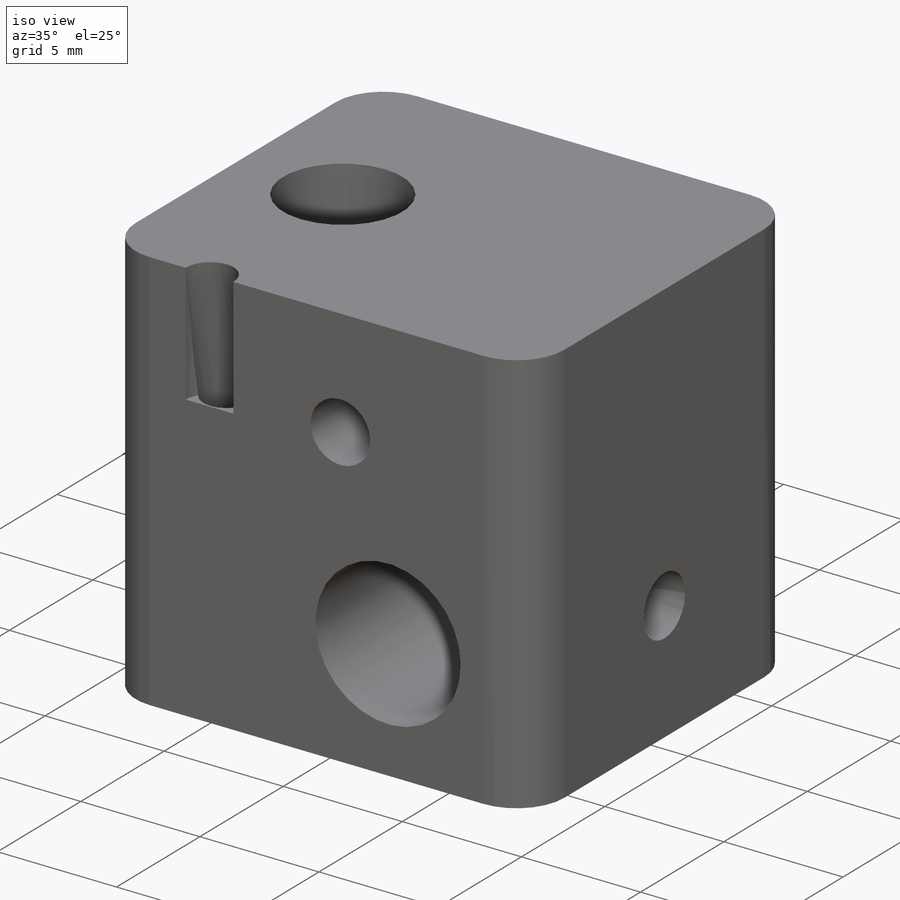
[diagram: iso view]
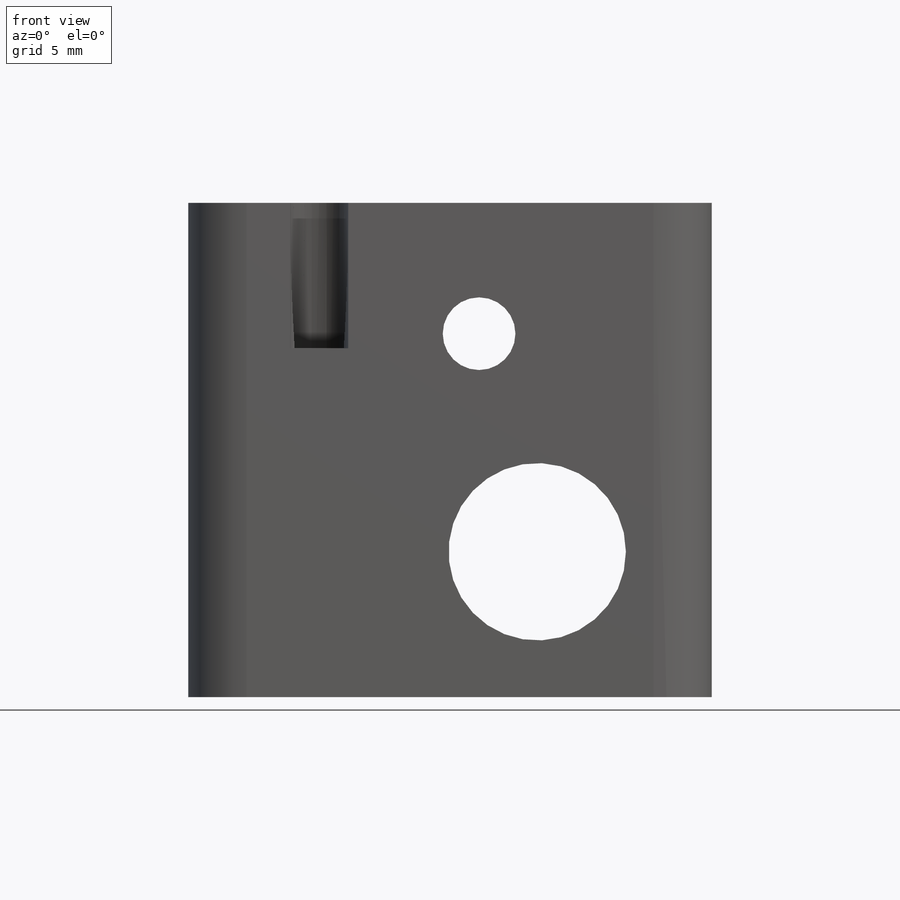
[diagram: front view]
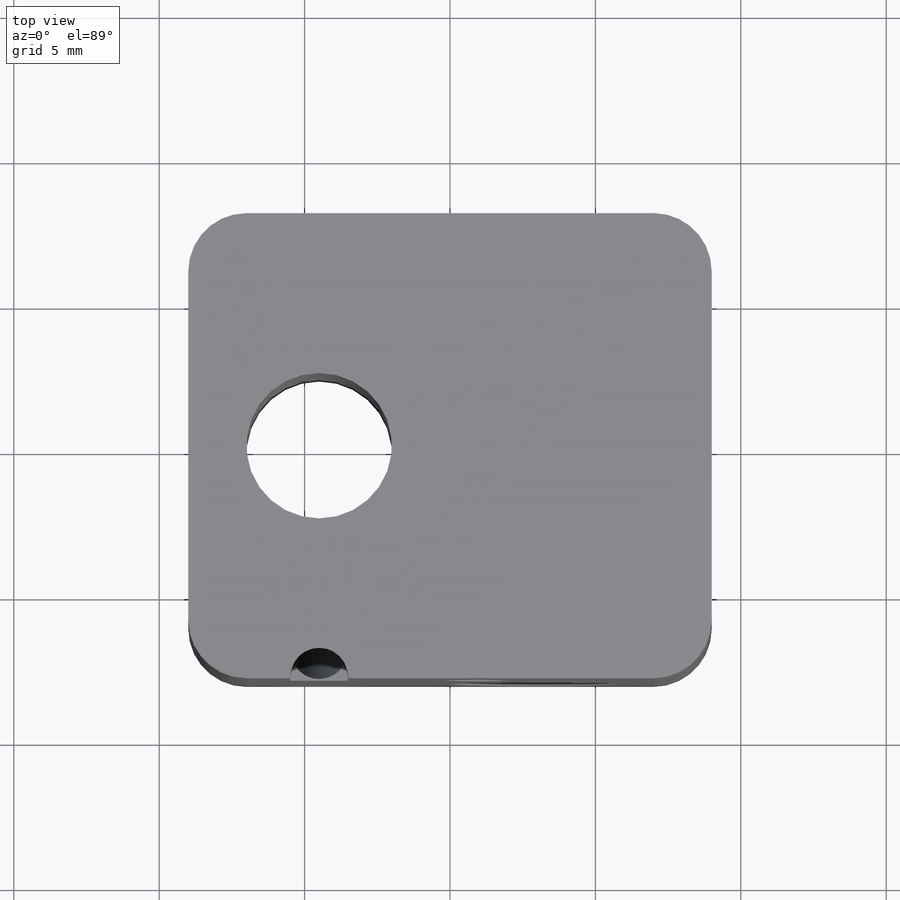
[diagram: top view]
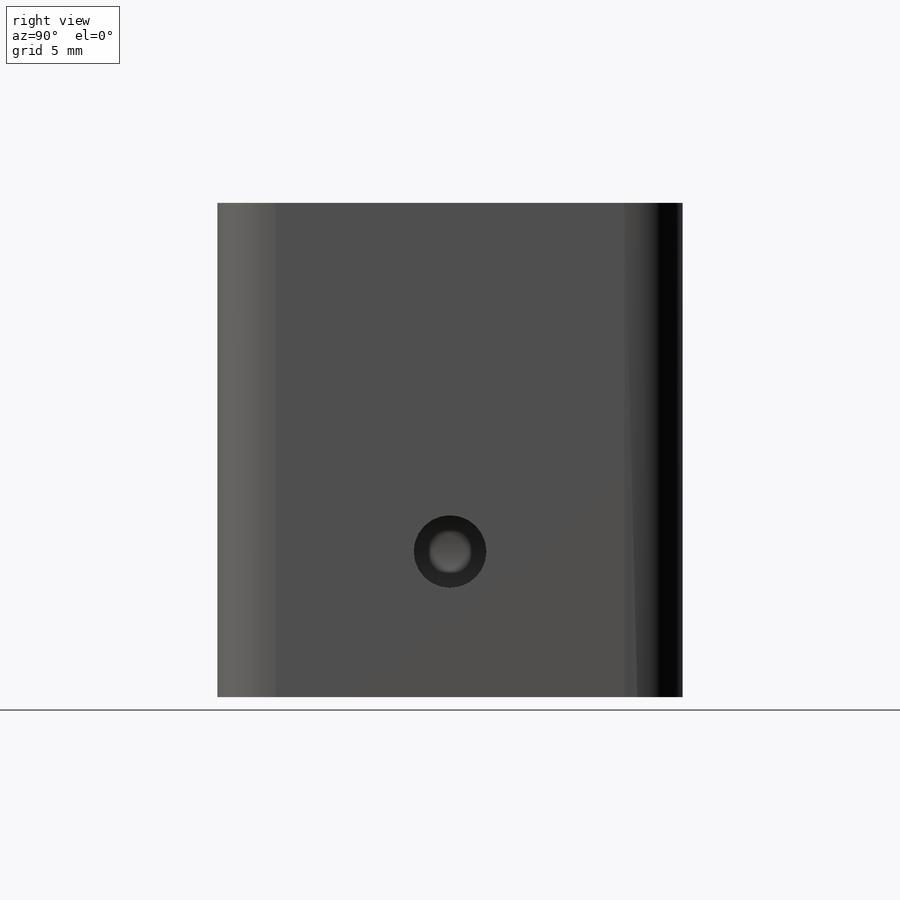
[diagram: right view]
SOLIDWORKS PART (.sldprt)
format: sldprt  version: not decoded by parser v0  size: 286,208 bytes
history: native  units: mm
features: sketch x10, hole x3, thread x3, cut_extrude x2, material x1, extrude x1, plane x1, cut_revolve x1 (+11 scaffold rows collapsed)
feature tree (33):
  scaffold x11  (default folders/planes/origin — collapsed)
  material  "6061-T4 (SS)"
  sketch  "Sketch1"  dims[D3=2.0mm D5=~6.545573mm D1=18.0mm D2=16.0mm D4=~4.566286mm]
  extrude  "Boss-Extrude1"  Depth=17mm
  sketch  "Sketch2"  dims[D1=6.1mm D2=5.0mm D3=6.0mm]
  cut_extrude  "Cut-Extrude1"  [1 undecoded]
  hole  "M3x0.5 Tapped Hole1"  Diameter=2.5mm Depth=16mm
  sketch  "Sketch4"  dims[D1=8.0mm D2=4.5mm]
  sketch  "Sketch3"  dims[hole-wizard template sketch: 60 standard entries collapsed; hole parameters kept: c18.Thru Tap Drill Depth=16.0mm]
  thread  "Hole Thread1"  Diameter=3mm  [1 undecoded]
  hole  "M6x1.0 Tapped Hole1"  Diameter=5mm Depth=17mm
  sketch  "Sketch6"  dims[D1=4.5mm]
  sketch  "Sketch5"  dims[hole-wizard template sketch: 60 standard entries collapsed; hole parameters kept: c18.Thru Tap Drill Depth=17.0mm]
  thread  "Hole Thread2"  Diameter=6mm  [1 undecoded]
  sketch  "Sketch7"  dims[D1=2.0mm]
  cut_extrude  "Cut-Extrude2"  Depth=5mm
  plane  "Plane1"
  sketch  "Sketch8"  dims[c1.D1=2.41mm c1.D2=2.1mm c1.D3=~15.662557mm c2.D3=12.0deg c2.D4=2.0mm c2.D5=~1.726958mm c3.D5=59.0deg]
  cut_revolve  "Cut-Revolve1"  Angle=360deg
  hole  "M3x0.5 Tapped Hole2"  Diameter=2.5mm Depth=6mm
  sketch  "Sketch10"
  sketch  "Sketch9"  dims[hole-wizard template sketch: 50 standard entries collapsed; hole parameters above]
  thread  "Hole Thread3"  Diameter=3.217914mm  [1 undecoded]
decode coverage: 18 of 20 modeling features carry decoded parameters
note: ~ marks probable driven/reference dimensions
note: 4 parameter values undecoded
note: suppression state not decoded; provenance and decode notes live in map.json
